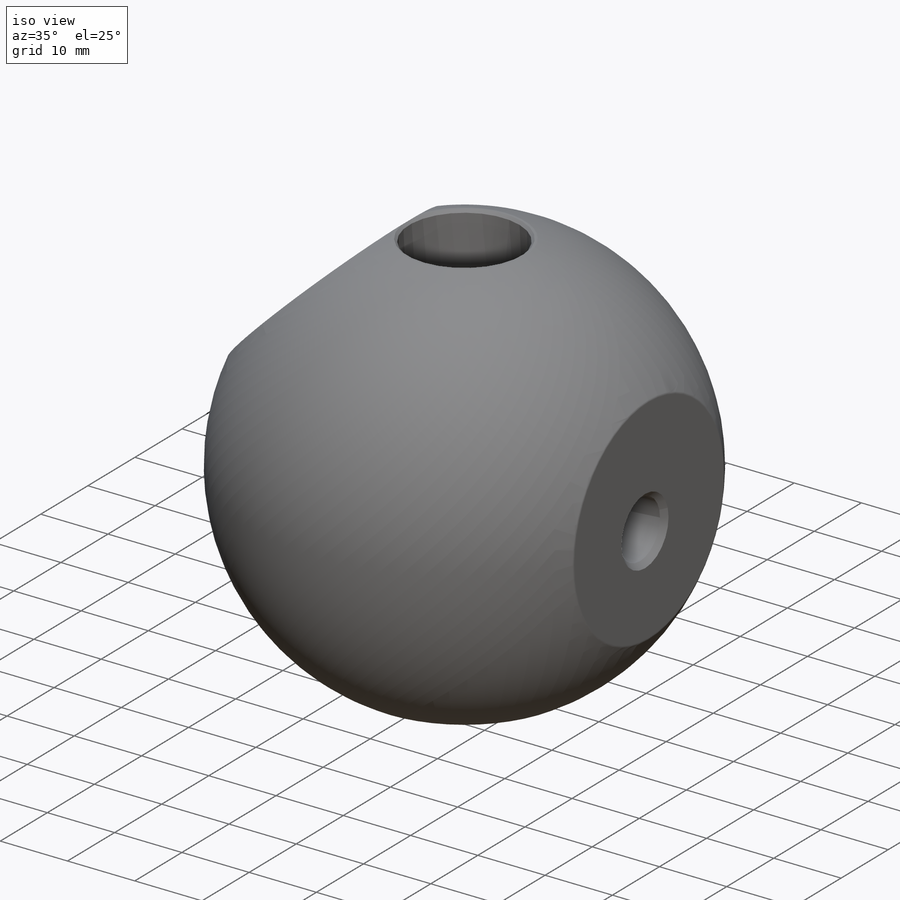
[diagram: iso view]
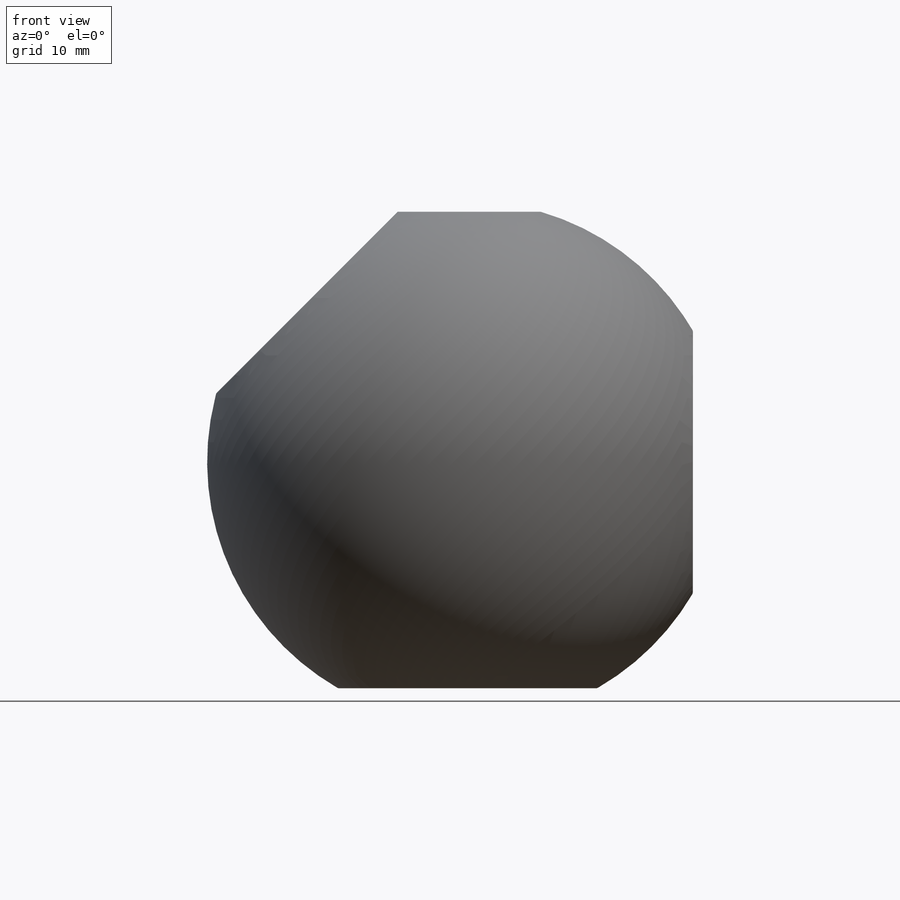
[diagram: front view]
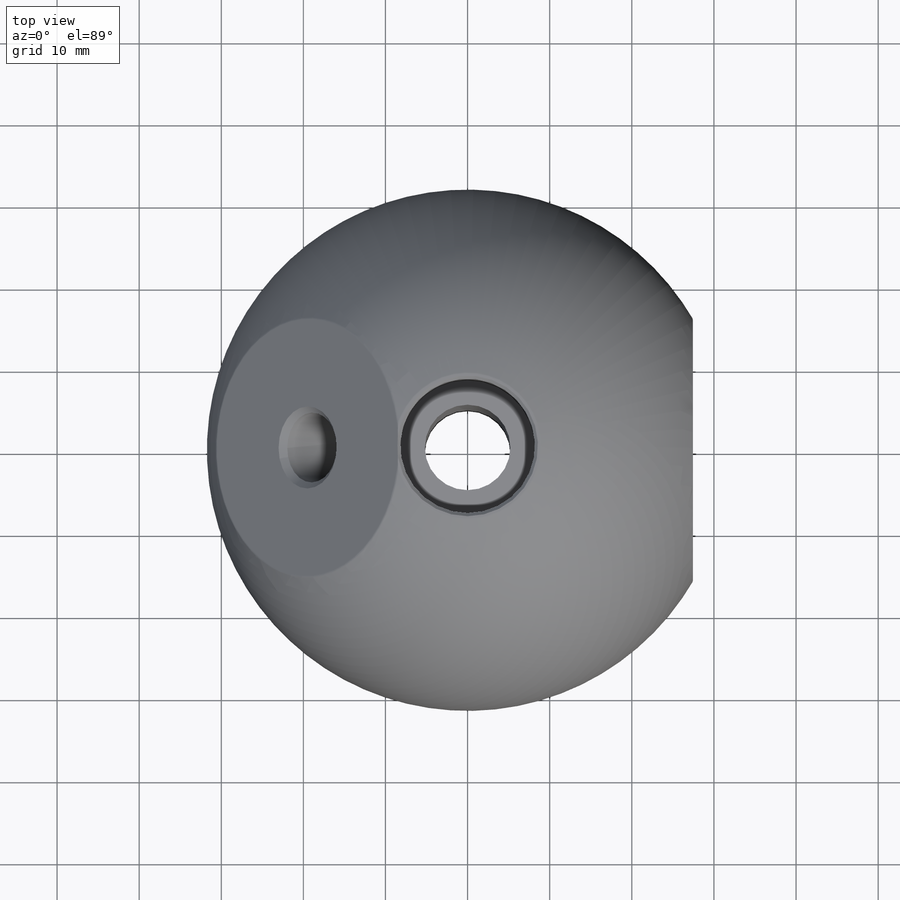
[diagram: top view]
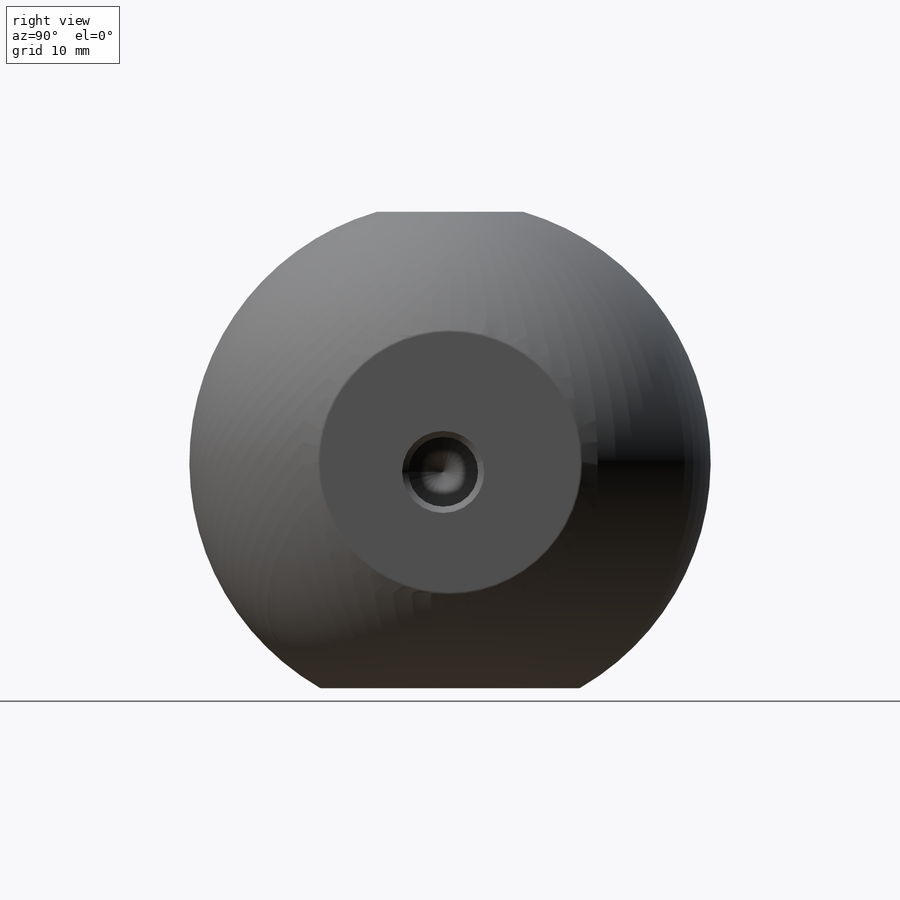
[diagram: right view]
SOLIDWORKS PART (.sldprt)
format: sldprt  version: not decoded by parser v0  size: 512,000 bytes
history: native  units: mm
features: sketch x8, plane x5, chamfer x2, hole x2, thread x2, material x1, revolve x1, cut_revolve x1, cut_extrude x1, fillet x1 + 2 further entries (+9 scaffold rows collapsed)
feature tree (35):
  scaffold x9  (default folders/planes/origin — collapsed)
  material  "Material <not specified>"
  plane  "Plane X-Y"
  plane  "Plane X-Z"
  plane  "Plane Y-Z"
  "Axis - Y"
  "Axis - Z"
  sketch  "Sketch1"  dims[c1.D1=63.5mm c1.D2=~42.888525mm c1.D3=17.78mm c2.D2=58.039mm]
  revolve  "Revolve1"  Angle=360deg
  sketch  "Sketch2"  dims[D1=16.383mm D2=11.049mm D3=10.414mm]
  cut_revolve  "Cut-Revolve1"  Angle=360deg
  sketch  "Sketch3"  dims[D1=19.558mm]
  cut_extrude  "Cut-Extrude1"  Depth=0.635mm
  chamfer  "Chamfer1"  Distance=0.381mm Angle=45deg
  plane  "Plane1"  Offset=27.432mm
  hole  "M10x1.5 Tapped Hole1"  Diameter=8.5mm Depth=16.8656mm
  sketch  "Sketch5"
  sketch  "Sketch4"  dims[hole-wizard template sketch: 40 standard entries collapsed; hole parameters kept: c13.Tap Drill Depth=16.8656mm c13.Near C'Sink Dia.=10.0mm c13.D4=~33.297463mm c13.Near C'Sink Angle=90.0deg c14.D5=~14.816244mm c14.Drill Angle=118.0deg]
  thread  "Hole Thread1"  Diameter=16.8656mm  [1 undecoded]
  sketch  "Sketch6"  dims[c1.D1=27.559mm c2.D1=45.0deg c2.D2=59.309mm]
  plane  "Plane2"
  hole  "M10x1.5 Tapped Hole2"  Diameter=8.5mm Depth=14.3256mm
  sketch  "Sketch8"
  sketch  "Sketch7"  dims[hole-wizard template sketch: 40 standard entries collapsed; hole parameters kept: c13.Tap Drill Depth=14.3256mm c13.Near C'Sink Dia.=10.0mm c13.D4=~33.297463mm c13.Near C'Sink Angle=90.0deg c14.D5=~14.816244mm c14.Drill Angle=118.0deg]
  thread  "Hole Thread2"  Diameter=14.3256mm  [1 undecoded]
  chamfer  "Chamfer2"  Distance=0.381mm Angle=45deg
  fillet  "Fillet1"  Radius=0.508mm
decode coverage: 16 of 18 modeling features carry decoded parameters; 2 rows unclassified (native names shown)
note: ~ marks probable driven/reference dimensions
note: 2 parameter values undecoded
note: suppression state not decoded; provenance and decode notes live in map.json
